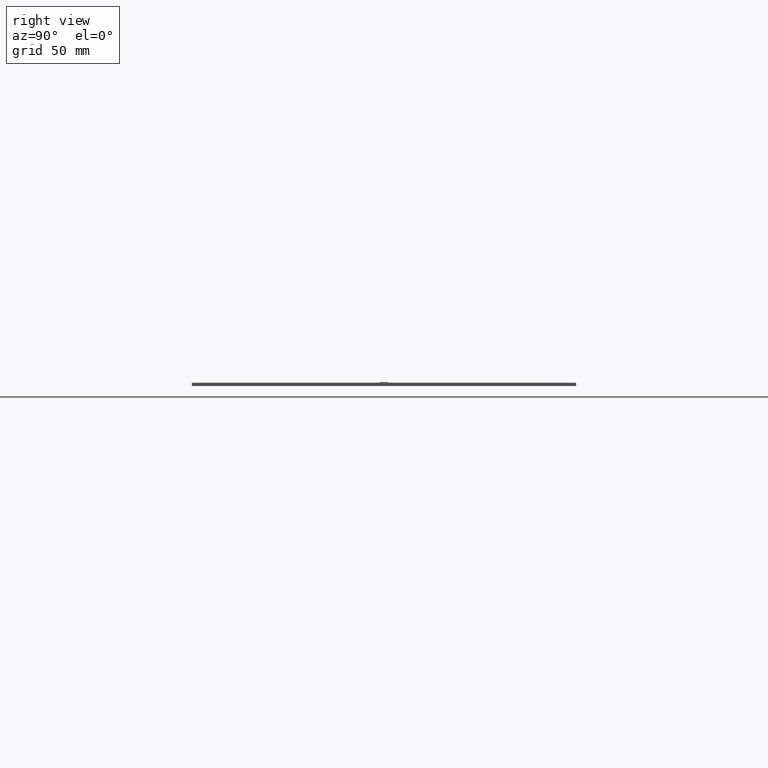
[diagram: clean part render]
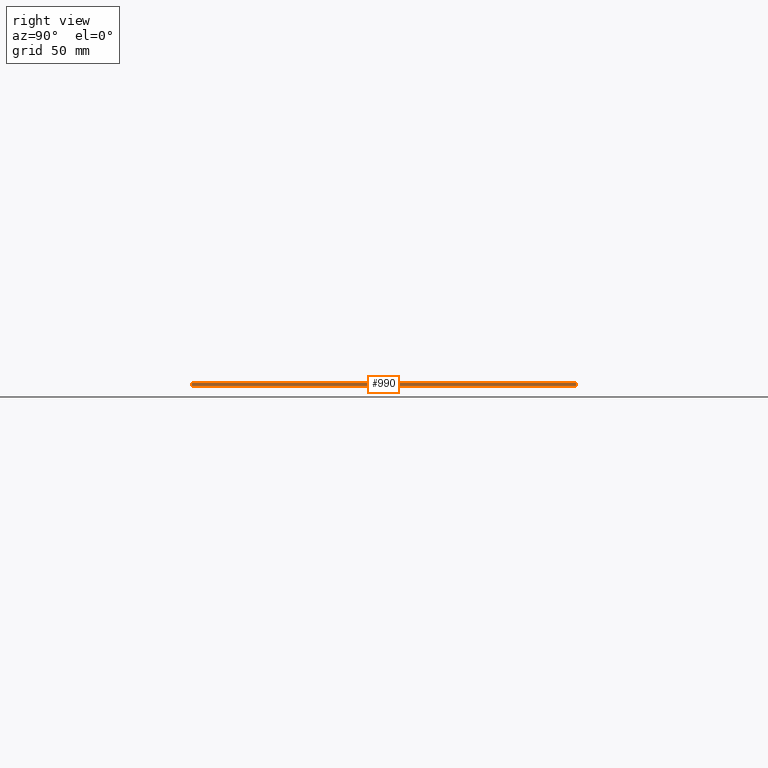
[diagram: same view with one face highlighted and labeled with its STEP entity id]
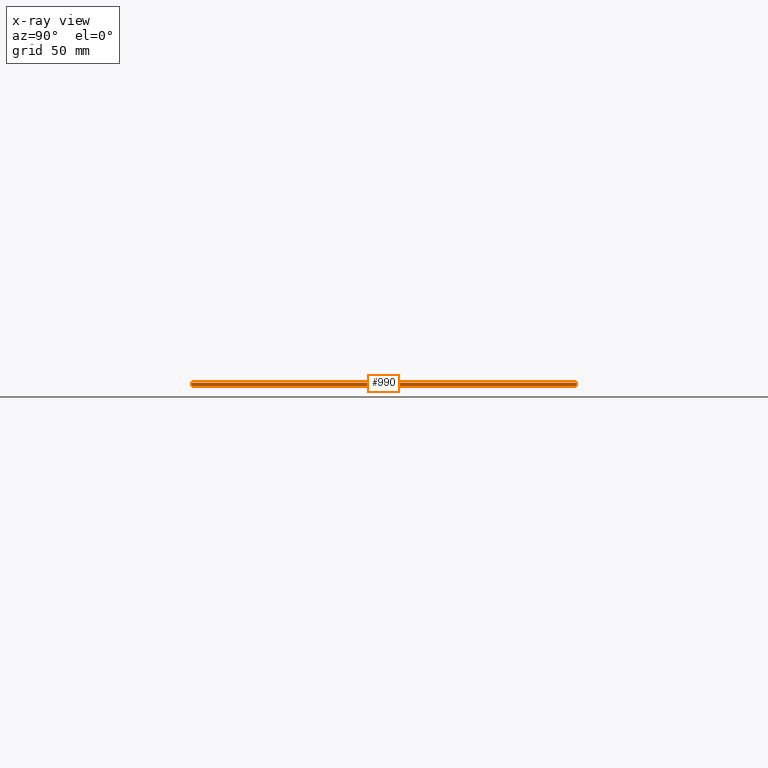
[diagram: x-ray of the same camera — body ghosted, the highlighted face saturated]
A machine part, right view. The second image highlights one B-rep face of the part: STEP entity #990.
The next image is the same camera in x-ray: the body ghosted, the highlighted face saturated — about 0% of this face is hidden behind the body in this view.
In plain terms, the highlighted planar face has unit normal (1, 0, 0).
Its self-contained STEP definition (entity closure, byte-faithful):
#80=FACE_OUTER_BOUND('',#134,.T.);
#134=EDGE_LOOP('',(#712,#713,#714,#715));
#201=LINE('',#1429,#327);
#206=LINE('',#1439,#332);
#207=LINE('',#1442,#333);
#208=LINE('',#1443,#334);
#327=VECTOR('',#1164,10.);
#332=VECTOR('',#1173,10.);
#333=VECTOR('',#1176,10.);
#334=VECTOR('',#1177,10.);
#442=VERTEX_POINT('',#1422);
#445=VERTEX_POINT('',#1427);
#448=VERTEX_POINT('',#1437);
#449=VERTEX_POINT('',#1441);
#545=EDGE_CURVE('',#445,#442,#201,.T.);
#550=EDGE_CURVE('',#445,#448,#206,.T.);
#551=EDGE_CURVE('',#449,#448,#207,.T.);
#552=EDGE_CURVE('',#442,#449,#208,.T.);
#712=ORIENTED_EDGE('',*,*,#545,.F.);
#713=ORIENTED_EDGE('',*,*,#550,.T.);
#714=ORIENTED_EDGE('',*,*,#551,.F.);
#715=ORIENTED_EDGE('',*,*,#552,.F.);
#944=PLANE('',#1063);
#990=ADVANCED_FACE('',(#80),#944,.T.);
#1063=AXIS2_PLACEMENT_3D('',#1440,#1174,#1175);
#1164=DIRECTION('',(0.,1.,0.));
#1173=DIRECTION('',(0.,0.,-1.));
#1174=DIRECTION('center_axis',(1.,0.,0.));
#1175=DIRECTION('ref_axis',(0.,-1.,0.));
#1176=DIRECTION('',(0.,-1.,0.));
#1177=DIRECTION('',(0.,0.,-1.));
#1422=CARTESIAN_POINT('',(163.495,126.,0.));
#1427=CARTESIAN_POINT('',(163.495,-126.,0.));
#1429=CARTESIAN_POINT('',(163.495,-126.,0.));
#1437=CARTESIAN_POINT('',(163.495,-126.,-2.1));
#1439=CARTESIAN_POINT('',(163.495,-126.,0.));
#1440=CARTESIAN_POINT('Origin',(163.495,126.,0.));
#1441=CARTESIAN_POINT('',(163.495,126.,-2.1));
#1442=CARTESIAN_POINT('',(163.495,-126.,-2.1));
#1443=CARTESIAN_POINT('',(163.495,126.,0.));